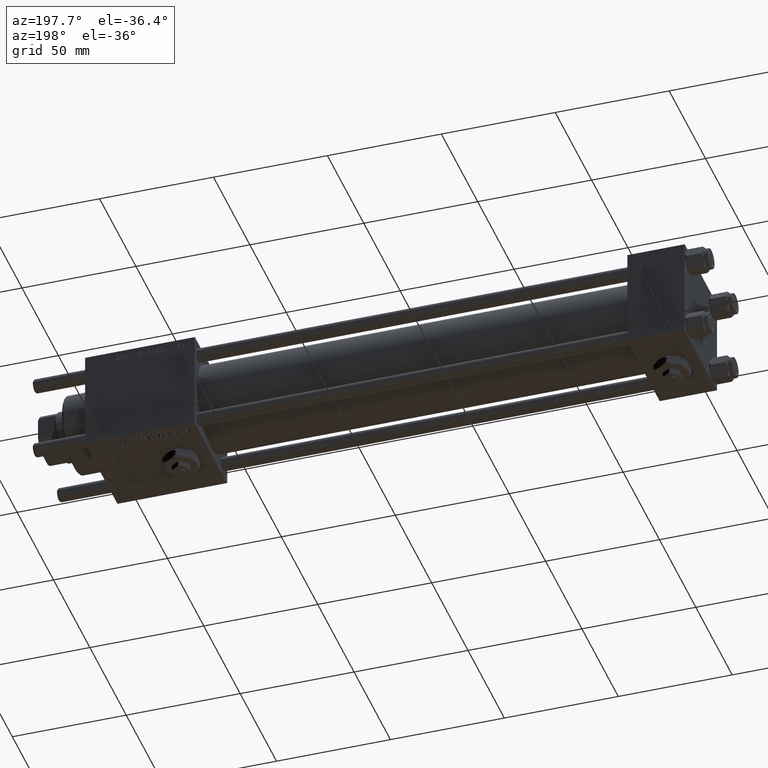
[diagram: clean part render]
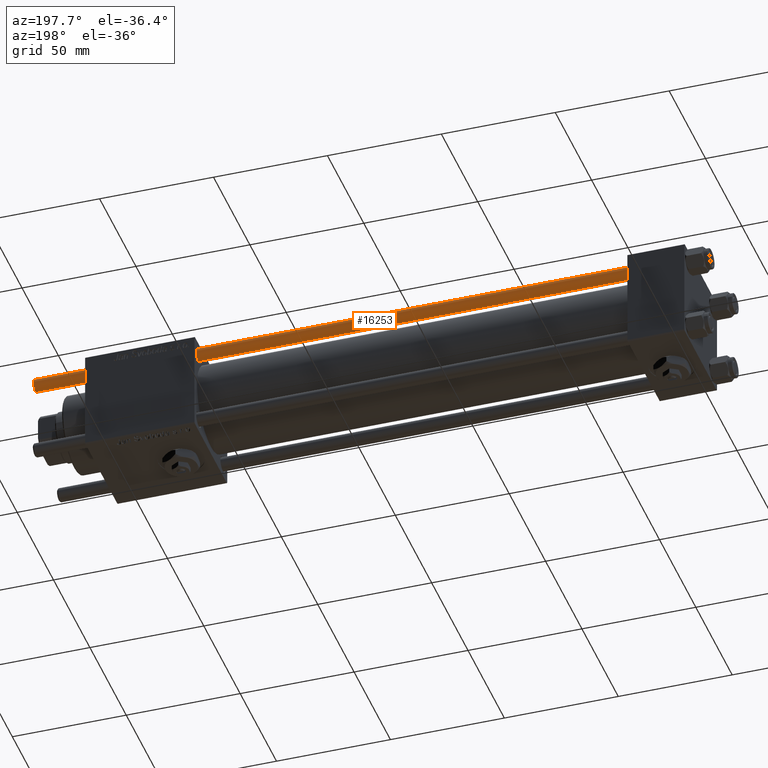
[diagram: same view with one face highlighted and labeled with its STEP entity id]
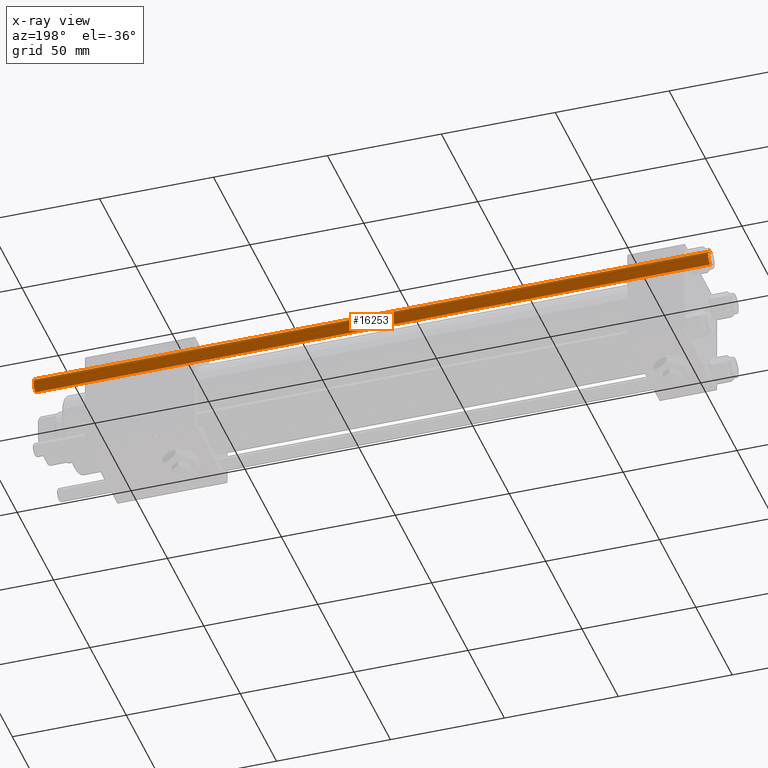
[diagram: x-ray of the same camera — body ghosted, the highlighted face saturated]
A machine part, auxiliary view. The second image highlights one B-rep face of the part: STEP entity #16253.
The next image is the same camera in x-ray: the body ghosted, the highlighted face saturated — about 0% of this face is hidden behind the body in this view.
In plain terms, the highlighted cylindrical surface (edge-blend (fillet) strip) has radius 3 mm, axis along (1, -0, -0).
Its self-contained STEP definition (entity closure, byte-faithful):
#1149 = CIRCLE ( 'NONE', #58156, 3.000000000000000444 ) ;
#3130 = CARTESIAN_POINT ( 'NONE',  ( 3.000000000000000444, 3.673940397442060361E-16, 296.5000000000000000 ) ) ;
#4354 = FACE_OUTER_BOUND ( 'NONE', #15319, .T. ) ;
#4978 = DIRECTION ( 'NONE',  ( 0.000000000000000000, 0.000000000000000000, -1.000000000000000000 ) ) ;
#5707 = DIRECTION ( 'NONE',  ( -0.000000000000000000, -0.000000000000000000, -1.000000000000000000 ) ) ;
#8595 = ORIENTED_EDGE ( 'NONE', *, *, #43013, .T. ) ;
#9457 = CARTESIAN_POINT ( 'NONE',  ( 0.000000000000000000, 0.000000000000000000, 296.5000000000000000 ) ) ;
#11920 = VERTEX_POINT ( 'NONE', #3130 ) ;
#15319 = EDGE_LOOP ( 'NONE', ( #8595, #24546, #52809, #51631 ) ) ;
#15328 = EDGE_CURVE ( 'NONE', #46917, #36887, #1149, .T. ) ;
#16253 = ADVANCED_FACE ( 'NONE', ( #4354 ), #27309, .T. ) ;
#17832 = DIRECTION ( 'NONE',  ( 1.000000000000000000, 0.000000000000000000, 0.000000000000000000 ) ) ;
#18501 = VECTOR ( 'NONE', #50603, 1000.000000000000000 ) ;
#19699 = CARTESIAN_POINT ( 'NONE',  ( -3.000000000000000444, 0.000000000000000000, 297.0000000000000000 ) ) ;
#20768 = EDGE_CURVE ( 'NONE', #56380, #36887, #32493, .T. ) ;
#24546 = ORIENTED_EDGE ( 'NONE', *, *, #40374, .T. ) ;
#25222 = CARTESIAN_POINT ( 'NONE',  ( -3.000000000000000444, 0.000000000000000000, 0.5000000000000004441 ) ) ;
#26470 = DIRECTION ( 'NONE',  ( -0.000000000000000000, -0.000000000000000000, 1.000000000000000000 ) ) ;
#27309 = CYLINDRICAL_SURFACE ( 'NONE', #40192, 3.000000000000000444 ) ;
#32043 = CARTESIAN_POINT ( 'NONE',  ( 0.000000000000000000, 0.000000000000000000, 297.0000000000000000 ) ) ;
#32493 = LINE ( 'NONE', #19699, #18501 ) ;
#33114 = VECTOR ( 'NONE', #5707, 1000.000000000000000 ) ;
#33194 = AXIS2_PLACEMENT_3D ( 'NONE', #9457, #4978, #17832 ) ;
#36700 = CARTESIAN_POINT ( 'NONE',  ( 3.000000000000000444, 3.673940397442060361E-16, 297.0000000000000000 ) ) ;
#36887 = VERTEX_POINT ( 'NONE', #25222 ) ;
#39564 = DIRECTION ( 'NONE',  ( 1.000000000000000000, 0.000000000000000000, 0.000000000000000000 ) ) ;
#40192 = AXIS2_PLACEMENT_3D ( 'NONE', #32043, #49858, #45411 ) ;
#40374 = EDGE_CURVE ( 'NONE', #11920, #46917, #41725, .T. ) ;
#41725 = LINE ( 'NONE', #36700, #33114 ) ;
#43013 = EDGE_CURVE ( 'NONE', #56380, #11920, #50271, .T. ) ;
#44009 = CARTESIAN_POINT ( 'NONE',  ( 0.000000000000000000, 0.000000000000000000, 0.5000000000000004441 ) ) ;
#45411 = DIRECTION ( 'NONE',  ( -1.000000000000000000, 0.000000000000000000, 0.000000000000000000 ) ) ;
#46917 = VERTEX_POINT ( 'NONE', #51023 ) ;
#47565 = CARTESIAN_POINT ( 'NONE',  ( -3.000000000000000444, 0.000000000000000000, 296.5000000000000000 ) ) ;
#49858 = DIRECTION ( 'NONE',  ( -0.000000000000000000, -0.000000000000000000, -1.000000000000000000 ) ) ;
#50271 = CIRCLE ( 'NONE', #33194, 3.000000000000000444 ) ;
#50603 = DIRECTION ( 'NONE',  ( -0.000000000000000000, -0.000000000000000000, -1.000000000000000000 ) ) ;
#51023 = CARTESIAN_POINT ( 'NONE',  ( 3.000000000000000444, 3.673940397442060361E-16, 0.5000000000000004441 ) ) ;
#51631 = ORIENTED_EDGE ( 'NONE', *, *, #20768, .F. ) ;
#52809 = ORIENTED_EDGE ( 'NONE', *, *, #15328, .T. ) ;
#56380 = VERTEX_POINT ( 'NONE', #47565 ) ;
#58156 = AXIS2_PLACEMENT_3D ( 'NONE', #44009, #26470, #39564 ) ;